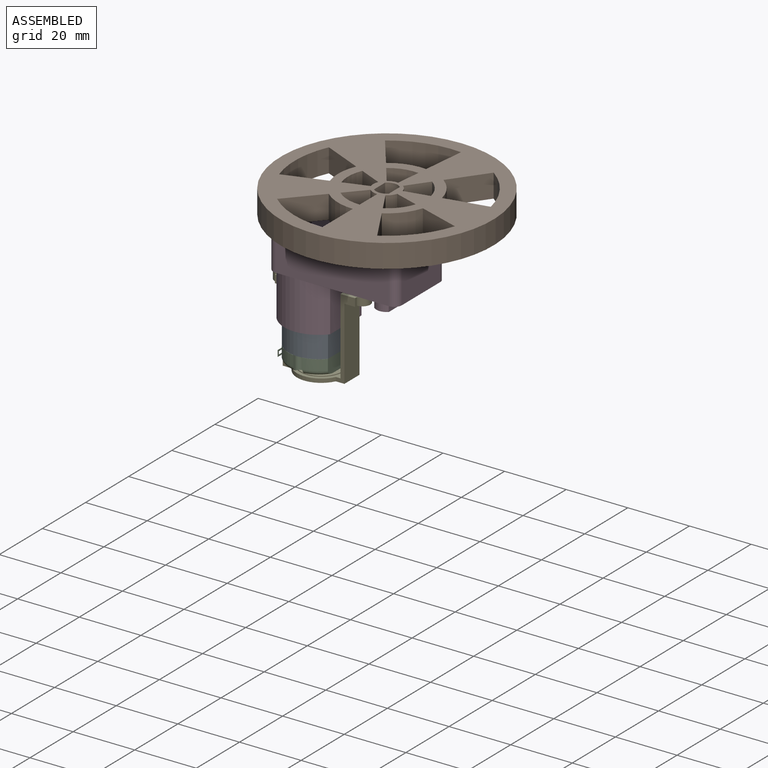
[diagram: assembled view]
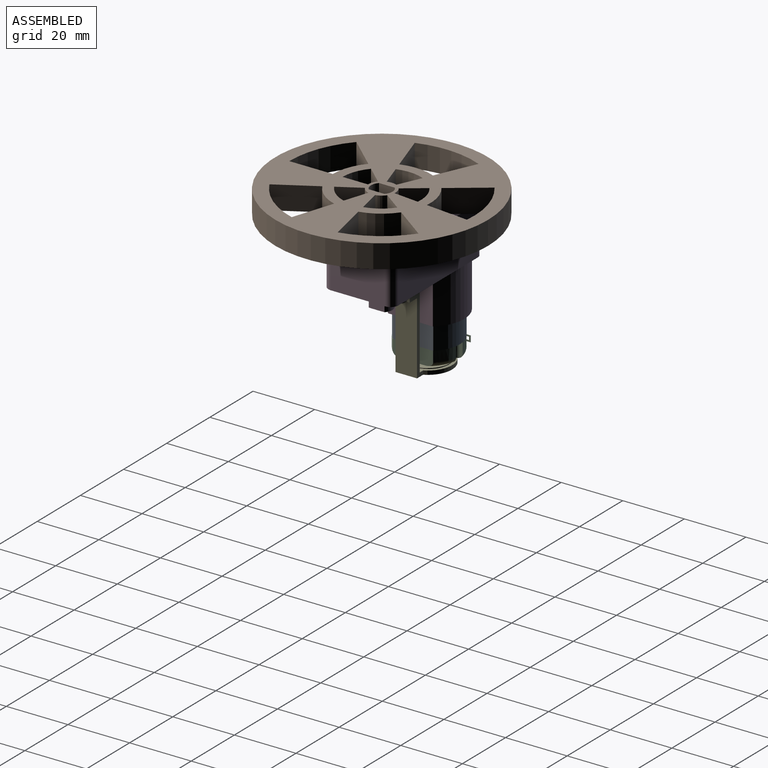
[diagram: assembled view, second angle]
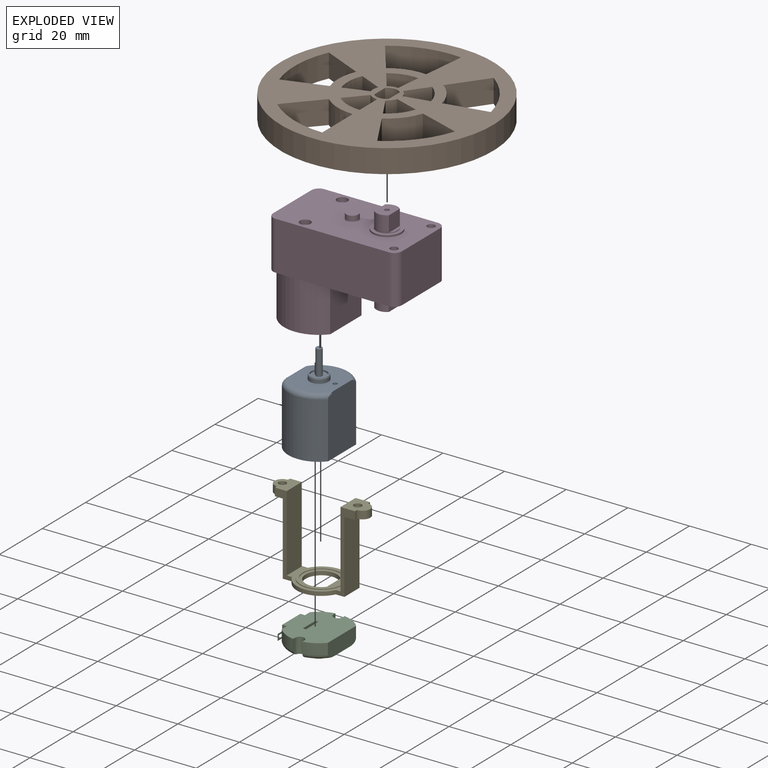
[diagram: exploded view]
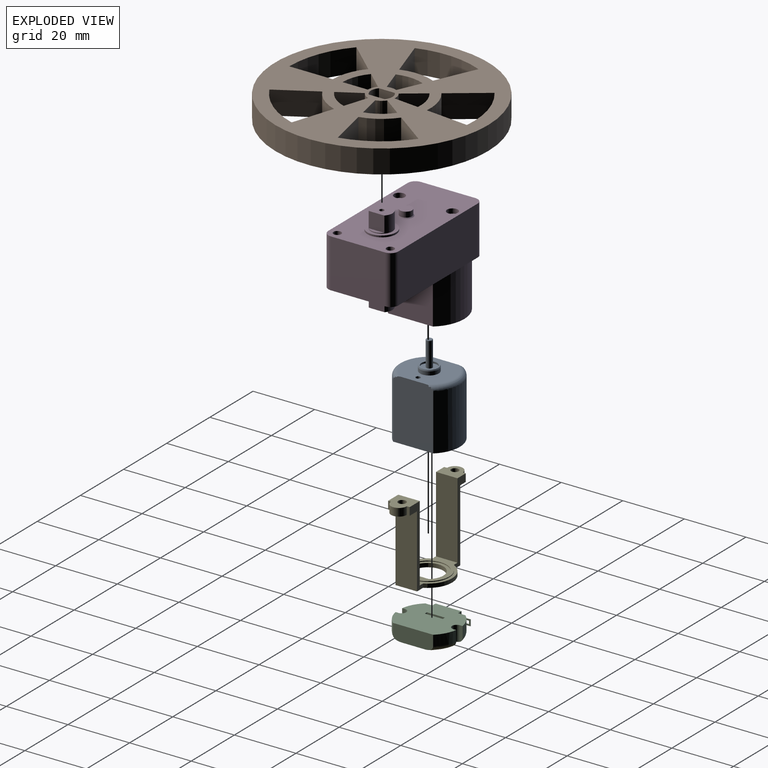
[diagram: exploded view, second angle]
ASSEMBLY  parts=5 mates=4
PART A: 20 faces, bbox 22.4x20x29.9 mm
  f0: plane 19.88x14.97mm, normal (0,0,1), area 266.2mm2, adj f1,f2,f10,f11
  f1: plane 20.61x13.97mm, normal (0,-1,0), area 255.4mm2, adj f0,f10,f11,f13,f15,f18
  f2: plane 20.61x13.97mm, normal (0,1,0), area 255.4mm2, adj f0,f10,f11,f14,f15,f18
  f3: plane 1.47x1.47mm, normal (0,0,-1), area 1.7mm2, adj f4,f5
  f4: torus R=0.73mm, axis (0,0,-1), area 1.1mm2, adj f3,f5,f6
  f5: torus R=0.73mm, axis (0,0,-1), area 1.1mm2, adj f3,f4,f6
  f6: cylinder r=0.98mm len=8.01mm, axis (0,0,1), area 49.5mm2, adj f4,f5,f7
  f7: plane 5.08x5.08mm, normal (0,0,-1), area 17.2mm2, adj f6,f8
  f8: cylinder r=2.54mm len=5.08mm, axis (0,0,-1), area 8.5mm2, adj f7,f9
  f9: plane 5.81x5.81mm, normal (0,0,-1), area 6.2mm2, adj f8,f12
  f10: cylinder r=9.89mm len=18.19mm, axis (0,0,1), area 308.8mm2, adj f0,f1,f2,f13,f14
  f11: cylinder r=9.94mm len=18.19mm, axis (0,0,1), area 308.3mm2, adj f0,f1,f2,f15
  f12: cone r=0mm half-angle=20deg, axis (0,0,1), area 8mm2, adj f9,f16
  f13: torus R=8.39mm, axis (0,0,1), area 21.5mm2, adj f1,f10,f14,f18
  f14: torus R=8.39mm, axis (0,0,1), area 21.5mm2, adj f2,f10,f13,f18
  f15: torus R=8.44mm, axis (0,0,1), area 42.9mm2, adj f1,f2,f11,f18
  f16: cylinder r=3.05mm len=6.1mm, axis (0,0,1), area 23mm2, adj f12,f18
  f17: plane 1.46x1.46mm, normal (0,0,-1), area 1.7mm2, adj f19
  f18: plane 17.59x15.69mm, normal (0,0,-1), area 182.6mm2, adj f1,f2,f13,f14,f15,f16,f19
  f19: cylinder r=0.73mm len=8.26mm, axis (0,0,-1), area 37.9mm2, adj f17,f18
PART B: 54 faces, bbox 69x7.6x69 mm
  f0: plane 5.13x3.81mm, normal (1,0,0), area 19.5mm2, adj f2,f3,f50,f53
  f1: plane 5.13x3.81mm, normal (-1,0,0), area 19.5mm2, adj f2,f3,f50,f53
  f2: cylinder r=3.51mm len=4.78mm, axis (0,1,0), area 20mm2, adj f0,f1,f50,f53
  f3: cylinder r=3.51mm len=4.78mm, axis (0,1,0), area 20mm2, adj f0,f1,f50,f53
  f4: cylinder r=3.51mm len=4.78mm, axis (0,1,0), area 6.7mm2, adj f5,f48,f49,f52
  f5: plane 5.13x1.27mm, normal (1,0,0), area 6.5mm2, adj f4,f6,f49,f52
  f6: cylinder r=3.51mm len=4.78mm, axis (0,1,0), area 6.7mm2, adj f5,f48,f49,f52
  f7: plane 8.15x7.62mm, normal (-0.99,0,-0.1), area 62.4mm2, adj f8,f37,f49,f50
  f8: cylinder r=12.7mm len=8.79mm, axis (0,1,0), area 70.9mm2, adj f7,f9,f49,f50
  f9: plane 7.62x6.63mm, normal (0.81,0,-0.59), area 62.4mm2, adj f8,f37,f49,f50
  f10: plane 8.02x7.62mm, normal (-0.21,0,-0.98), area 62.4mm2, adj f11,f38,f49,f50
  f11: cylinder r=12.7mm len=7.63mm, axis (0,1,0), area 70.9mm2, adj f10,f12,f49,f50
  f12: plane 7.62x6.63mm, normal (0.81,0,0.59), area 62.4mm2, adj f11,f38,f49,f50
  f13: cylinder r=12.7mm len=9.09mm, axis (0,1,0), area 70.9mm2, adj f14,f39,f49,f50
  f14: plane 7.79x7.62mm, normal (-0.31,0,-0.95), area 62.4mm2, adj f13,f15,f49,f50
  f15: cylinder r=4.51mm len=7.62mm, axis (0,1,0), area 25.2mm2, adj f14,f39,f49,f50
  f16: plane 7.62x7.1mm, normal (0.87,0,-0.5), area 62.4mm2, adj f17,f40,f49,f50
  f17: cylinder r=12.7mm len=7.62mm, axis (0,1,0), area 70.9mm2, adj f16,f18,f49,f50
  f18: plane 7.79x7.62mm, normal (-0.31,0,0.95), area 62.4mm2, adj f17,f40,f49,f50
  f19: cylinder r=12.7mm len=8.5mm, axis (0,1,0), area 70.9mm2, adj f20,f41,f49,f50
  f20: plane 8.19x7.62mm, normal (-1,0,0), area 62.4mm2, adj f19,f21,f49,f50
  f21: cylinder r=4.51mm len=7.62mm, axis (0,1,0), area 25.2mm2, adj f20,f41,f49,f50
  f22: plane 12.23x7.62mm, normal (0.87,0,-0.5), area 107.6mm2, adj f23,f43,f49,f50
  f23: cylinder r=30mm len=16.71mm, axis (0,1,0), area 167.6mm2, adj f22,f24,f49,f50
  f24: plane 13.43x7.62mm, normal (-0.31,0,0.95), area 107.6mm2, adj f23,f43,f49,f50
  f25: cylinder r=30mm len=20.07mm, axis (0,1,0), area 167.6mm2, adj f26,f44,f49,f50
  f26: plane 14.13x7.62mm, normal (-1,0,0), area 107.6mm2, adj f25,f27,f49,f50
  f27: cylinder r=15.88mm len=10.62mm, axis (0,1,0), area 88.7mm2, adj f26,f44,f49,f50
  f28: cylinder r=30mm len=21.47mm, axis (0,1,0), area 167.6mm2, adj f29,f45,f49,f50
  f29: plane 13.43x7.62mm, normal (-0.31,0,-0.95), area 107.6mm2, adj f28,f30,f49,f50
  f30: cylinder r=15.88mm len=11.36mm, axis (0,1,0), area 88.7mm2, adj f29,f45,f49,f50
  f31: cylinder r=30mm len=20.77mm, axis (0,1,0), area 167.6mm2, adj f32,f46,f49,f50
  f32: plane 11.43x8.3mm, normal (0.81,0,-0.59), area 107.6mm2, adj f31,f33,f49,f50
  f33: cylinder r=15.88mm len=10.99mm, axis (0,1,0), area 88.7mm2, adj f32,f46,f49,f50
  f34: cylinder r=30mm len=18.03mm, axis (0,1,0), area 167.6mm2, adj f35,f47,f49,f50
  f35: plane 11.43x8.3mm, normal (0.81,0,0.59), area 107.6mm2, adj f34,f36,f49,f50
  f36: cylinder r=15.88mm len=9.54mm, axis (0,1,0), area 88.7mm2, adj f35,f47,f49,f50
  f37: cylinder r=4.51mm len=7.62mm, axis (0,1,0), area 25.2mm2, adj f7,f9,f49,f50
  f38: cylinder r=4.51mm len=7.62mm, axis (0,1,0), area 25.2mm2, adj f10,f12,f49,f50
  f39: plane 7.62x7.49mm, normal (-0.41,0,0.91), area 62.4mm2, adj f13,f15,f49,f50
  f40: cylinder r=4.51mm len=7.62mm, axis (0,1,0), area 25.2mm2, adj f16,f18,f49,f50
  f41: plane 7.62x6.09mm, normal (0.74,0,0.67), area 62.4mm2, adj f19,f21,f49,f50
  f42: cylinder r=34.5mm len=69mm, axis (0,1,0), area 1651.8mm2, adj f49,f50
  f43: cylinder r=15.88mm len=8.84mm, axis (0,1,0), area 88.7mm2, adj f22,f24,f49,f50
  f44: plane 10.5x9.45mm, normal (0.74,0,0.67), area 107.6mm2, adj f25,f27,f49,f50
  f45: plane 12.9x7.62mm, normal (-0.41,0,0.91), area 107.6mm2, adj f28,f30,f49,f50
  f46: plane 14.05x7.62mm, normal (-0.99,0,-0.1), area 107.6mm2, adj f31,f33,f49,f50
  f47: plane 13.82x7.62mm, normal (-0.21,0,-0.98), area 107.6mm2, adj f34,f36,f49,f50
  f48: plane 5.13x1.27mm, normal (-1,0,0), area 6.5mm2, adj f4,f6,f49,f52
  f49: plane 69x69mm, normal (0,-1,0), area 2262.7mm2, adj f4,f5,f6,f7,f8,f9,f10,f11
  f50: plane 69x69mm, normal (0,1,0), area 2262.7mm2, adj f0,f1,f2,f3,f7,f8,f9,f10
  f51: cylinder r=0.75mm len=2.54mm, axis (0,1,0), area 12mm2, adj f52,f53
  f52: plane 7.01x4.78mm, normal (0,-1,0), area 28.9mm2, adj f4,f5,f6,f48,f51
  f53: plane 7.01x4.78mm, normal (0,1,0), area 28.9mm2, adj f0,f1,f2,f3,f51
PART C: 55 faces, bbox 21.6x20.6x8.8 mm
  f0: plane 13.05x5mm, normal (0,-1,0), area 63.6mm2, adj f2,f29,f30,f37,f38,f47
  f1: plane 4.99x2.31mm, normal (0,1,0), area 10.7mm2, adj f2,f43,f44,f48
  f2: plane 19.63x16.47mm, normal (0,0,-1), area 260mm2, adj f0,f1,f3,f29,f30,f31,f32,f33
  f3: plane 4.99x2.31mm, normal (0,1,0), area 10.7mm2, adj f2,f50,f51,f54
  f4: plane 1.47x1.47mm, normal (0,0,1), area 1.7mm2, adj f5,f6
  f5: torus R=0.73mm, axis (0,0,1), area 1.1mm2, adj f4,f6,f7
  f6: torus R=0.73mm, axis (0,0,1), area 1.1mm2, adj f4,f5,f7
  f7: cylinder r=0.98mm len=1.97mm, axis (0,0,-1), area 7.7mm2, adj f5,f6,f15
  f8: plane 3.83x0.08mm, normal (0,0,-1), area 0.3mm2, adj f9,f20,f21,f44
  f9: plane 2x0.08mm, normal (1,0,0), area 0.2mm2, adj f8,f10,f20,f21
  f10: plane 3.83x0.08mm, normal (0,0,1), area 0.3mm2, adj f9,f20,f21,f44
  f11: plane 1x0.08mm, normal (1,0,0), area 0.1mm2, adj f12,f14,f20,f21
  f12: plane 1.93x0.08mm, normal (0,0,-1), area 0.2mm2, adj f11,f13,f20,f21
  f13: plane 1x0.08mm, normal (-1,0,0), area 0.1mm2, adj f12,f14,f20,f21
  f14: plane 1.93x0.08mm, normal (0,0,1), area 0.2mm2, adj f11,f13,f20,f21
  f15: plane 8.93x7.78mm, normal (0,0,1), area 48.7mm2, adj f7,f16,f17,f18,f19,f32,f33,f34
  f16: cylinder r=0.5mm len=6.35mm, axis (-1,0,0), area 4.8mm2, adj f15,f17,f19,f39
  f17: torus R=4.45mm, axis (0,0,1), area 3.2mm2, adj f15,f16,f18,f40
  f18: torus R=4.45mm, axis (0,0,1), area 11.8mm2, adj f15,f17,f19,f40
  f19: torus R=4.45mm, axis (0,0,1), area 3.2mm2, adj f15,f16,f18,f40
  f20: plane 3.83x2mm, normal (0,-1,0), area 5.7mm2, adj f8,f9,f10,f11,f12,f13,f14,f44
  f21: plane 3.83x2mm, normal (0,1,0), area 5.7mm2, adj f8,f9,f10,f11,f12,f13,f14,f44
  f22: plane 3.83x0.08mm, normal (0,0,1), area 0.3mm2, adj f23,f45,f46,f50
  f23: plane 2x0.08mm, normal (-1,0,0), area 0.2mm2, adj f22,f24,f45,f46
  f24: plane 3.83x0.08mm, normal (0,0,-1), area 0.3mm2, adj f23,f45,f46,f50
  f25: plane 1x0.08mm, normal (-1,0,0), area 0.1mm2, adj f26,f28,f45,f46
  f26: plane 1.93x0.08mm, normal (0,0,1), area 0.2mm2, adj f25,f27,f45,f46
  f27: plane 1x0.08mm, normal (1,0,0), area 0.1mm2, adj f26,f28,f45,f46
  f28: plane 1.93x0.08mm, normal (0,0,-1), area 0.2mm2, adj f25,f27,f45,f46
  f29: cylinder r=9.93mm len=5.99mm, axis (0,0,-1), area 24.1mm2, adj f0,f2,f36,f38
  f30: cylinder r=9.93mm len=5.99mm, axis (0,0,-1), area 24.1mm2, adj f0,f2,f31,f37
  f31: plane 4.92x0.96mm, normal (0,1,0), area 3.9mm2, adj f2,f30,f37,f41
  f32: plane 7x1mm, normal (-1,0,0), area 7mm2, adj f2,f15,f33,f35
  f33: plane 7x5.84mm, normal (0,1,0), area 40.9mm2, adj f2,f15,f32,f34
  f34: plane 7x1mm, normal (1,0,0), area 7mm2, adj f2,f15,f33,f35
  f35: plane 7x5.84mm, normal (0,-1,0), area 40.9mm2, adj f2,f15,f32,f34
  f36: plane 4.92x0.96mm, normal (0,1,0), area 3.9mm2, adj f2,f29,f38,f53
  f37: torus R=8.38mm, axis (0,0,-1), area 17.5mm2, adj f0,f30,f31,f41,f47
  f38: torus R=8.38mm, axis (0,0,-1), area 17.5mm2, adj f0,f29,f36,f47,f53
  f39: plane 6.35x1.5mm, normal (0,-1,0), area 9.5mm2, adj f16,f40,f47
  f40: cylinder r=4.95mm len=9.91mm, axis (0,0,-1), area 36.3mm2, adj f17,f18,f19,f39,f47
  f41: cylinder r=1.5mm len=5mm, axis (0,0,1), area 23.5mm2, adj f2,f31,f37,f42,f47,f48
  f42: plane 4.92x0.96mm, normal (0,-1,0), area 3.9mm2, adj f2,f41,f43,f48
  f43: cylinder r=9.93mm len=5.99mm, axis (0,0,-1), area 24.1mm2, adj f1,f2,f42,f48
  f44: plane 5.29x1.8mm, normal (1,0,0), area 6.8mm2, adj f1,f2,f8,f10,f20,f21,f48,f49
  f45: plane 3.83x2mm, normal (0,-1,0), area 5.7mm2, adj f22,f23,f24,f25,f26,f27,f28,f50
  f46: plane 3.83x2mm, normal (0,1,0), area 5.7mm2, adj f22,f23,f24,f25,f26,f27,f28,f50
  f47: plane 16.75x16.07mm, normal (0,0,1), area 140.4mm2, adj f0,f37,f38,f39,f40,f41,f48,f53
  f48: torus R=8.38mm, axis (0,0,-1), area 22.3mm2, adj f1,f41,f42,f43,f44,f47,f49,f54
  f49: plane 8.44x4.88mm, normal (0,1,0), area 39.1mm2, adj f2,f44,f48,f50,f54
  f50: plane 5.29x1.8mm, normal (-1,0,0), area 6.8mm2, adj f2,f3,f22,f24,f45,f46,f49,f54
  f51: cylinder r=9.93mm len=5.99mm, axis (0,0,-1), area 24.1mm2, adj f2,f3,f52,f54
  f52: plane 4.92x0.96mm, normal (0,-1,0), area 3.9mm2, adj f2,f51,f53,f54
  f53: cylinder r=1.5mm len=5mm, axis (0,0,1), area 23.5mm2, adj f2,f36,f38,f47,f52,f54
  f54: torus R=8.38mm, axis (0,0,-1), area 22.3mm2, adj f3,f47,f48,f49,f50,f51,f52,f53
PART D: 74 faces, bbox 47.3x22.7x37.3 mm
  f0: plane 1.5x1.5mm, normal (0,0,1), area 1.8mm2, adj f1
  f1: cylinder r=0.75mm len=5.84mm, axis (0,0,-1), area 27.5mm2, adj f0,f6
  f2: plane 6.1x6.1mm, normal (0,0,-1), area 29.2mm2, adj f10
  f3: plane 2.5x2.5mm, normal (0,0,1), area 4.9mm2, adj f11
  f4: plane 2.5x2.5mm, normal (0,0,1), area 4.9mm2, adj f12
  f5: plane 5.08x5.07mm, normal (1,0,0), area 25.7mm2, adj f6,f9,f14
  f6: plane 6.99x4.78mm, normal (0,0,1), area 28.8mm2, adj f1,f5,f7,f14
  f7: plane 5.13x5.08mm, normal (-1,0,0), area 26mm2, adj f6,f8,f14
  f8: plane 5.13x1.12mm, normal (0,0,1), area 4mm2, adj f7,f14
  f9: plane 5.07x1.09mm, normal (0,0,1), area 3.8mm2, adj f5,f14
  f10: cylinder r=3.05mm len=14.45mm, axis (0,0,-1), area 276.6mm2, adj f2,f17
  f11: cylinder r=1.25mm len=14.29mm, axis (0,0,-1), area 112.2mm2, adj f3,f21
  f12: cylinder r=1.25mm len=14.29mm, axis (0,0,-1), area 112.2mm2, adj f4,f22
  f13: plane 3.94x3.94mm, normal (0,0,1), area 12.2mm2, adj f23
  f14: cylinder r=3.49mm len=6.99mm, axis (0,0,-1), area 58.1mm2, adj f5,f6,f7,f8,f9,f24
  f15: cylinder r=1mm len=5.08mm, axis (0,0,1), area 31.9mm2, adj f25,f27
  f16: cylinder r=2.29mm len=5.08mm, axis (0,0,1), area 32.6mm2, adj f25,f26,f27,f28
  f17: plane 20.37x15.1mm, normal (0,0,-1), area 247.3mm2, adj f10,f19,f29,f30,f31
  f18: plane 15.1x3.37mm, normal (0,0,-1), area 0.3mm2, adj f19,f32
  f19: cylinder r=10.21mm len=15.1mm, axis (0,0,1), area 75.5mm2, adj f17,f18,f32
  f20: plane 2x2mm, normal (0,0,-1), area 3.1mm2, adj f33
  f21: plane 3.5x3.5mm, normal (0,0,1), area 4.7mm2, adj f11,f34
  f22: plane 3.5x3.5mm, normal (0,0,1), area 4.7mm2, adj f12,f35
  f23: cylinder r=1.97mm len=3.94mm, axis (0,0,-1), area 21.6mm2, adj f13,f36
  f24: plane 9.27x9.27mm, normal (0,0,1), area 29.2mm2, adj f14,f37
  f25: plane 5.46x4.51mm, normal (0,0,-1), area 19.4mm2, adj f15,f16,f26,f28,f41
  f26: plane 5.08x3.56mm, normal (0,-1,0), area 18.1mm2, adj f16,f25,f27,f41
  f27: plane 5.46x4.51mm, normal (0,0,1), area 19.4mm2, adj f15,f16,f26,f28,f41
  f28: plane 5.08x3.56mm, normal (0,1,0), area 18.1mm2, adj f16,f25,f27,f41
  f29: plane 13.67x11.22mm, normal (-1,0,0), area 153.3mm2, adj f17,f30,f32,f43
  f30: cylinder r=10.15mm len=15.1mm, axis (0,0,1), area 191mm2, adj f17,f29,f31,f43
  f31: plane 13.67x11.22mm, normal (1,0,0), area 153.3mm2, adj f17,f30,f32,f43
  f32: cylinder r=10.15mm len=15.66mm, axis (0,0,1), area 266.6mm2, adj f18,f19,f29,f31,f43
  f33: cylinder r=1mm len=5.08mm, axis (0,0,1), area 31.9mm2, adj f20,f44
  f34: cylinder r=1.75mm len=3.5mm, axis (0,0,1), area 16.8mm2, adj f21,f45
  f35: cylinder r=1.75mm len=3.5mm, axis (0,0,1), area 16.8mm2, adj f22,f45
  f36: cone r=0mm half-angle=45deg, axis (0,0,-1), area 4.7mm2, adj f23,f45
  f37: cylinder r=4.64mm len=9.27mm, axis (0,0,-1), area 16mm2, adj f24,f45
  f38: cylinder r=2.5mm len=15.81mm, axis (0,0,-1), area 62.1mm2, adj f39,f41,f45,f47
  f39: plane 8.7x4.09mm, normal (0,0,-1), area 9.5mm2, adj f38,f41,f46,f47
  f40: cylinder r=2.5mm len=15.81mm, axis (0,0,-1), area 62.1mm2, adj f41,f42,f45,f51
  f41: plane 31.47x17.7mm, normal (-1,0,0), area 484.4mm2, adj f25,f26,f27,f28,f38,f39,f40,f42
  f42: plane 8.7x4.09mm, normal (0,0,-1), area 9.5mm2, adj f40,f41,f51,f52
  f43: plane 22.7x17.4mm, normal (0,0,-1), area 74.8mm2, adj f29,f30,f31,f32,f41,f46,f52,f56
  f44: plane 5.46x4.51mm, normal (0,0,-1), area 19.4mm2, adj f33,f53,f54,f55,f56
  f45: plane 41.8x22.7mm, normal (0,0,1), area 831.5mm2, adj f34,f35,f36,f37,f38,f40,f41,f47
  f46: cylinder r=11.3mm len=17.4mm, axis (0,0,1), area 311mm2, adj f39,f41,f43,f56,f60
  f47: plane 36.8x15.81mm, normal (0,-1,0), area 581.9mm2, adj f38,f39,f45,f48,f60
  f48: cylinder r=2.5mm len=15.81mm, axis (0,0,-1), area 62.1mm2, adj f45,f47,f49,f60
  f49: plane 17.7x15.81mm, normal (1,0,0), area 279.9mm2, adj f45,f48,f50,f60
  f50: cylinder r=2.5mm len=15.81mm, axis (0,0,-1), area 62.1mm2, adj f45,f49,f51,f60
  f51: plane 36.8x15.81mm, normal (0,1,0), area 581.9mm2, adj f40,f42,f45,f50,f60
  f52: cylinder r=11.3mm len=17.4mm, axis (0,0,1), area 311mm2, adj f41,f42,f43,f56,f60
  f53: plane 5.08x3.56mm, normal (0,1,0), area 18.1mm2, adj f44,f54,f56,f60
  f54: cylinder r=2.29mm len=5.08mm, axis (0,0,1), area 32.6mm2, adj f44,f53,f55,f60
  f55: plane 5.08x3.56mm, normal (0,-1,0), area 18.1mm2, adj f44,f54,f56,f60
  f56: plane 15.66x14.52mm, normal (1,0,0), area 204.6mm2, adj f43,f44,f46,f52,f53,f55,f60
  f57: cylinder r=1.25mm len=15.81mm, axis (0,0,-1), area 124.2mm2, adj f45,f60
  f58: cylinder r=1.25mm len=15.81mm, axis (0,0,-1), area 124.2mm2, adj f45,f60
  f59: plane 1.5x1.5mm, normal (0,0,-1), area 1.8mm2, adj f61
  f60: plane 33.1x22.7mm, normal (0,0,-1), area 461.6mm2, adj f46,f47,f48,f49,f50,f51,f52,f53
  f61: cylinder r=0.75mm len=10mm, axis (0,0,-1), area 47.1mm2, adj f59,f65
  f62: cone r=0mm half-angle=45deg, axis (0,0,1), area 10.9mm2, adj f60,f66
  f63: plane 5.06x1.11mm, normal (0,0,-1), area 3.9mm2, adj f64,f68
  f64: plane 5.06x4.19mm, normal (-1,0,0), area 21.2mm2, adj f63,f65,f67,f68,f69
  f65: plane 6.91x4.7mm, normal (0,0,-1), area 28mm2, adj f61,f64,f67,f69,f70
  f66: cylinder r=4.76mm len=9.53mm, axis (0,0,1), area 76.1mm2, adj f62,f71
  f67: cylinder r=3.45mm len=4.7mm, axis (0,0,1), area 20.3mm2, adj f64,f65,f70,f71
  f68: cylinder r=3.45mm len=5.06mm, axis (0,0,1), area 1.4mm2, adj f63,f64,f71
  f69: cylinder r=3.45mm len=4.7mm, axis (0,0,1), area 20.3mm2, adj f64,f65,f70,f71
  f70: plane 5.06x4.19mm, normal (1,0,0), area 21.2mm2, adj f65,f67,f69,f72,f73
  f71: plane 9.53x9.53mm, normal (0,0,-1), area 33.8mm2, adj f66,f67,f68,f69,f73
  f72: plane 5.06x1.11mm, normal (0,0,-1), area 3.9mm2, adj f70,f73
  f73: cylinder r=3.45mm len=5.06mm, axis (0,0,1), area 1.4mm2, adj f70,f71,f72
PART E: 30 faces, bbox 31.1x15.9x26 mm
  f0: cylinder r=2.54mm len=5.08mm, axis (0,0,-1), area 20.2mm2, adj f5,f6,f7,f8
  f1: cylinder r=1.22mm len=2.54mm, axis (0,0,1), area 19.5mm2, adj f6,f8
  f2: cylinder r=1.27mm len=2.54mm, axis (0,0,1), area 20.2mm2, adj f9,f10
  f3: cylinder r=2.54mm len=5.08mm, axis (0,0,-1), area 20.2mm2, adj f4,f9,f10,f11
  f4: plane 2.54x0.95mm, normal (1,0,0), area 2.4mm2, adj f3,f9,f10,f15
  f5: plane 2.54x0.95mm, normal (-1,0,0), area 2.4mm2, adj f0,f6,f8,f17
  f6: plane 6.99x5.08mm, normal (0,0,-1), area 23.2mm2, adj f0,f1,f5,f7,f17,f18,f19
  f7: plane 2.54x0.95mm, normal (-1,0,0), area 2.4mm2, adj f0,f6,f8,f19
  f8: plane 6.99x6.35mm, normal (0,0,1), area 32mm2, adj f0,f1,f5,f7,f13,f17,f19
  f9: plane 6.99x5.97mm, normal (0,0,-1), area 29mm2, adj f2,f3,f4,f11,f14,f15,f21
  f10: plane 7.24x6.99mm, normal (0,0,1), area 37.9mm2, adj f2,f3,f4,f11,f12,f15,f21
  f11: plane 2.54x0.95mm, normal (1,0,0), area 2.4mm2, adj f3,f9,f10,f21
  f12: plane 24.77x6.99mm, normal (-1,0,0), area 173mm2, adj f10,f15,f21,f22
  f13: plane 24.77x6.99mm, normal (1,0,0), area 173mm2, adj f8,f17,f19,f22
  f14: plane 23.5x6.99mm, normal (1,0,0), area 164.1mm2, adj f9,f15,f21,f23
  f15: plane 26.04x6.22mm, normal (0,1,0), area 43.7mm2, adj f4,f9,f10,f12,f14,f16,f22,f23
  f16: cylinder r=7.94mm len=14.26mm, axis (0,0,-1), area 22.5mm2, adj f15,f17,f22,f23
  f17: plane 26.04x5.51mm, normal (0,1,0), area 41.7mm2, adj f5,f6,f8,f13,f16,f18,f22,f23
  f18: plane 23.5x6.99mm, normal (-1,0,0), area 164.1mm2, adj f6,f17,f19,f23
  f19: plane 26.04x5.51mm, normal (0,-1,0), area 41.7mm2, adj f6,f7,f8,f13,f18,f20,f22,f23
  f20: cylinder r=7.94mm len=14.26mm, axis (0,0,-1), area 22.5mm2, adj f19,f21,f22,f23
  f21: plane 26.04x6.22mm, normal (0,-1,0), area 43.7mm2, adj f9,f10,f11,f12,f14,f20,f22,f23
  f22: plane 17.48x15.88mm, normal (0,0,1), area 62.3mm2, adj f12,f13,f15,f16,f17,f19,f20,f21
  f23: plane 20.02x15.88mm, normal (0,0,-1), area 154.3mm2, adj f14,f15,f16,f17,f18,f19,f20,f21
  f24: cylinder r=6.92mm len=13.84mm, axis (0,0,-1), area 11mm2, adj f22,f27
  f25: plane 6.35x1.27mm, normal (-1,0,0), area 8.1mm2, adj f23,f26,f28
  f26: cylinder r=5.08mm len=10.16mm, axis (0,0,-1), area 31.8mm2, adj f23,f25,f28
  f27: plane 13.84x13.84mm, normal (0,0,1), area 36.2mm2, adj f24,f29
  f28: plane 12.07x12.07mm, normal (0,0,1), area 38.1mm2, adj f25,f26,f29
  f29: cylinder r=6.03mm len=12.07mm, axis (0,0,-1), area 9.6mm2, adj f27,f28
PLACE A rot(axis=(0.71,-0.71,0),180deg) t=(28.54,53.25,-14.91)mm
PLACE B rot(axis=(1,0,0),90deg) t=(50.59,53.25,32.74)mm
PLACE C rot(axis=(0.71,-0.71,0),180deg) t=(28.54,53.2,-14.91)mm
PLACE D t=(19.84,41.9,8.54)mm
PLACE E t=(19.2,56.75,-22.57)mm
MATE fastened D.f1 <-> B.f51  axis (0,0,1) through (50.59,53.25,30.2)mm
MATE fastened A.f6 <-> D.f10  axis (0,0,1) through (28.54,53.25,5.84)mm
MATE fastened D.f15 <-> E.f0  axis (0,0,-1) through (16.66,53.25,3.46)mm
MATE fastened C.f7 <-> A.f10  axis (0,0,1) through (28.54,53.2,-14.91)mm
